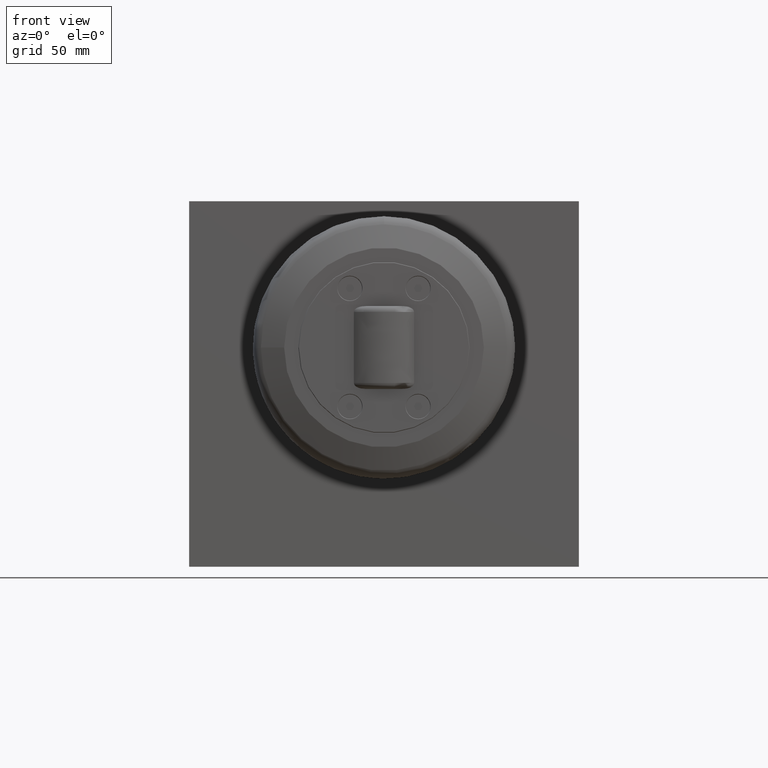
[diagram: clean part render]
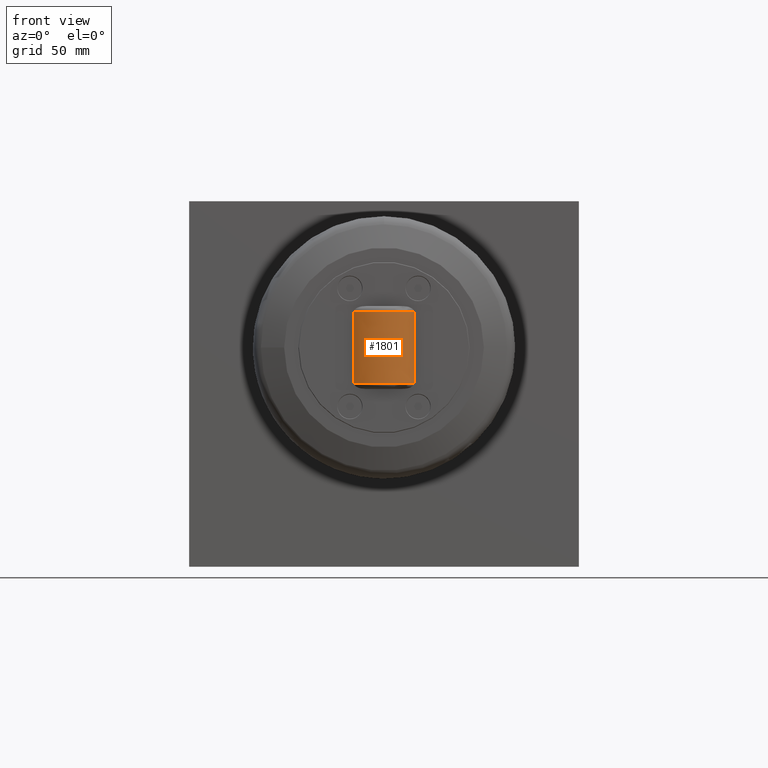
[diagram: same view with one face highlighted and labeled with its STEP entity id]
A machine part, front view. The second image highlights one B-rep face of the part: STEP entity #1801.
In plain terms, the highlighted face is a freeform B-spline surface patch.
Its self-contained STEP definition (entity closure, byte-faithful):
#16=B_SPLINE_CURVE_WITH_KNOTS('',3,(#2986,#2987,#2988,#2989,#2990,#2991),
 .UNSPECIFIED.,.F.,.F.,(4,2,4),(20.9197590489252,22.3118182927769,23.7038775366286),
 .UNSPECIFIED.);
#19=B_SPLINE_CURVE_WITH_KNOTS('',3,(#3017,#3018,#3019,#3020,#3021,#3022),
 .UNSPECIFIED.,.F.,.F.,(4,2,4),(6.04521352040729,7.43727276425897,8.82933200811067),
 .UNSPECIFIED.);
#30=(
BOUNDED_SURFACE()
B_SPLINE_SURFACE(2,2,((#3104,#3105,#3106),(#3107,#3108,#3109),(#3110,#3111,
#3112)),.UNSPECIFIED.,.F.,.F.,.F.)
B_SPLINE_SURFACE_WITH_KNOTS((3,3),(3,3),(-0.0207900280961621,0.0207900280961624),
(0.927295218001615,2.21429743558818),.UNSPECIFIED.)
GEOMETRIC_REPRESENTATION_ITEM()
RATIONAL_B_SPLINE_SURFACE(((1.,0.800000000000002,1.),(0.99978389514988,
0.799827116119906,0.99978389514988),(1.,0.800000000000002,1.)))
REPRESENTATION_ITEM('')
SURFACE()
);
#140=CIRCLE('',#1992,20.848726604916);
#142=CIRCLE('',#1995,20.848726604916);
#256=FACE_OUTER_BOUND('',#384,.T.);
#384=EDGE_LOOP('',(#1629,#1630,#1631,#1632));
#865=VERTEX_POINT('',#2974);
#866=VERTEX_POINT('',#2985);
#869=VERTEX_POINT('',#3005);
#870=VERTEX_POINT('',#3016);
#1098=EDGE_CURVE('',#865,#866,#16,.T.);
#1102=EDGE_CURVE('',#869,#870,#19,.T.);
#1135=EDGE_CURVE('',#870,#865,#140,.T.);
#1137=EDGE_CURVE('',#866,#869,#142,.T.);
#1629=ORIENTED_EDGE('',*,*,#1102,.F.);
#1630=ORIENTED_EDGE('',*,*,#1137,.F.);
#1631=ORIENTED_EDGE('',*,*,#1098,.F.);
#1632=ORIENTED_EDGE('',*,*,#1135,.F.);
#1801=ADVANCED_FACE('',(#256),#30,.F.);
#1992=AXIS2_PLACEMENT_3D('',#3101,#2502,#2503);
#1995=AXIS2_PLACEMENT_3D('',#3113,#2508,#2509);
#2502=DIRECTION('center_axis',(1.61236515491818E-15,-9.60310883656553E-18,
-1.));
#2503=DIRECTION('ref_axis',(-2.35322206460408E-16,1.,-9.19940712541586E-17));
#2508=DIRECTION('center_axis',(-1.61236515491818E-15,9.60310883656553E-18,
1.));
#2509=DIRECTION('ref_axis',(-2.35322206460408E-16,1.,1.4508646697294E-17));
#2974=CARTESIAN_POINT('',(67.6537697637484,-50.9,75.448028673835));
#2985=CARTESIAN_POINT('',(67.6537697637484,-50.9,104.551971326165));
#2986=CARTESIAN_POINT('Ctrl Pts',(67.6537697637485,-50.9,75.448028673835));
#2987=CARTESIAN_POINT('Ctrl Pts',(67.477856658145,-50.9,80.4580016054684));
#2988=CARTESIAN_POINT('Ctrl Pts',(67.4000000000001,-50.9,85.3598025204943));
#2989=CARTESIAN_POINT('Ctrl Pts',(67.4,-50.9,94.6401974795056));
#2990=CARTESIAN_POINT('Ctrl Pts',(67.4778566581449,-50.9,99.5419983945315));
#2991=CARTESIAN_POINT('Ctrl Pts',(67.6537697637485,-50.9,104.551971326165));
#3005=CARTESIAN_POINT('',(92.3462302362515,-50.9,104.551971326165));
#3016=CARTESIAN_POINT('',(92.3462302362516,-50.9,75.4480286738351));
#3017=CARTESIAN_POINT('Ctrl Pts',(92.3462302362515,-50.9,104.551971326165));
#3018=CARTESIAN_POINT('Ctrl Pts',(92.522143341855,-50.9,99.5419983945315));
#3019=CARTESIAN_POINT('Ctrl Pts',(92.5999999999999,-50.9,94.6401974795056));
#3020=CARTESIAN_POINT('Ctrl Pts',(92.5999999999999,-50.9,85.3598025204944));
#3021=CARTESIAN_POINT('Ctrl Pts',(92.5221433418551,-50.9,80.4580016054684));
#3022=CARTESIAN_POINT('Ctrl Pts',(92.3462302362516,-50.9,75.4480286738351));
#3101=CARTESIAN_POINT('Origin',(80.,-34.1,75.4480286738351));
#3104=CARTESIAN_POINT('Ctrl Pts',(92.5092359629495,-50.7789812839328,104.551971326165));
#3105=CARTESIAN_POINT('Ctrl Pts',(80.,-60.1609082561449,104.551971326165));
#3106=CARTESIAN_POINT('Ctrl Pts',(67.4907640370505,-50.7789812839328,104.551971326165));
#3107=CARTESIAN_POINT('Ctrl Pts',(92.6907836558387,-51.0210448744516,90.));
#3108=CARTESIAN_POINT('Ctrl Pts',(80.,-60.5391326163306,89.9999999999999));
#3109=CARTESIAN_POINT('Ctrl Pts',(67.3092163441614,-51.0210448744517,89.9999999999999));
#3110=CARTESIAN_POINT('Ctrl Pts',(92.5092359629495,-50.7789812839328,75.4480286738351));
#3111=CARTESIAN_POINT('Ctrl Pts',(80.,-60.1609082561449,75.4480286738351));
#3112=CARTESIAN_POINT('Ctrl Pts',(67.4907640370505,-50.7789812839329,75.448028673835));
#3113=CARTESIAN_POINT('Origin',(80.,-34.1,104.551971326165));